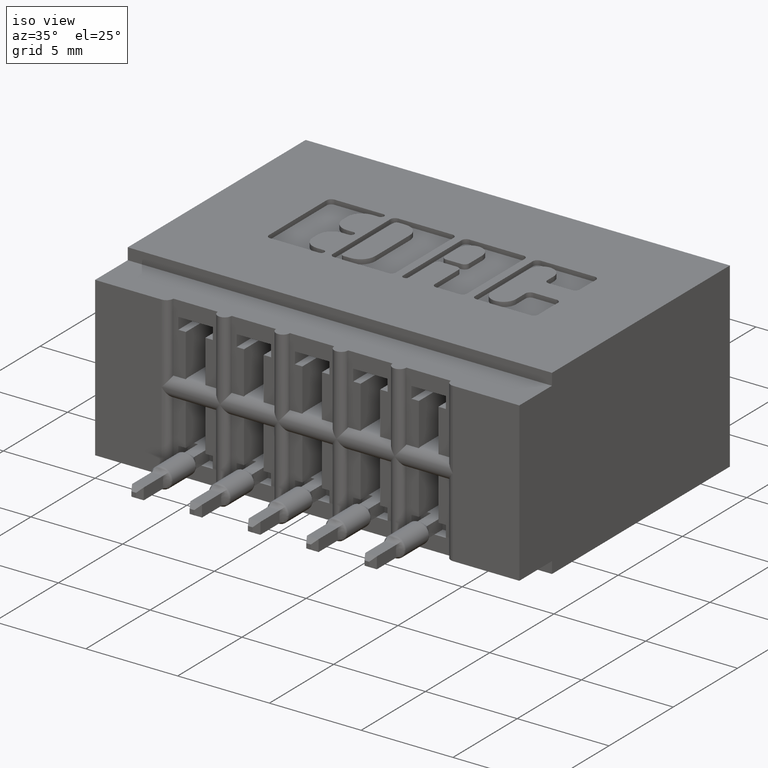
[diagram: clean part render]
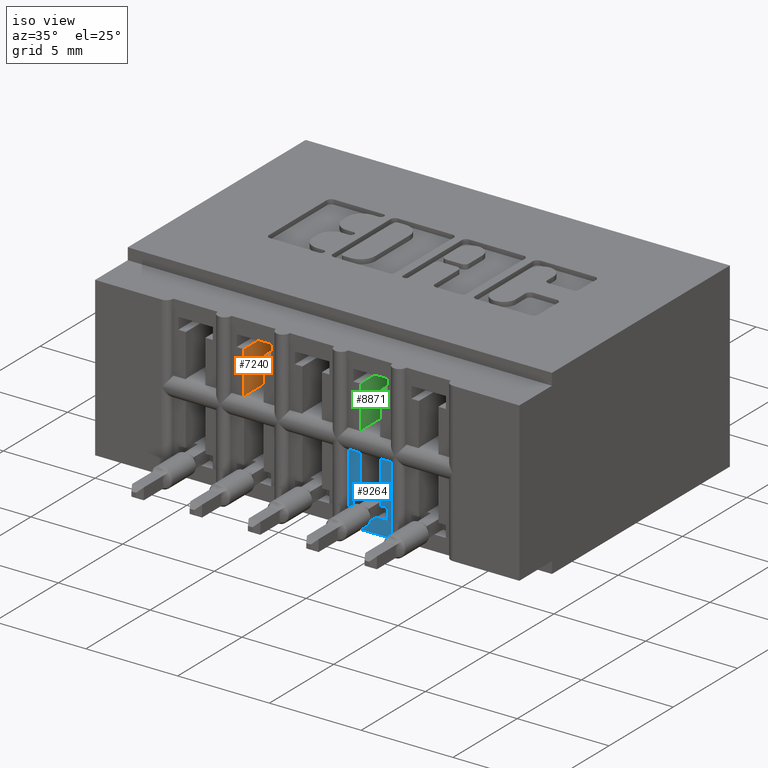
[diagram: same view with three faces highlighted in distinct colors, each labeled with its STEP entity id]
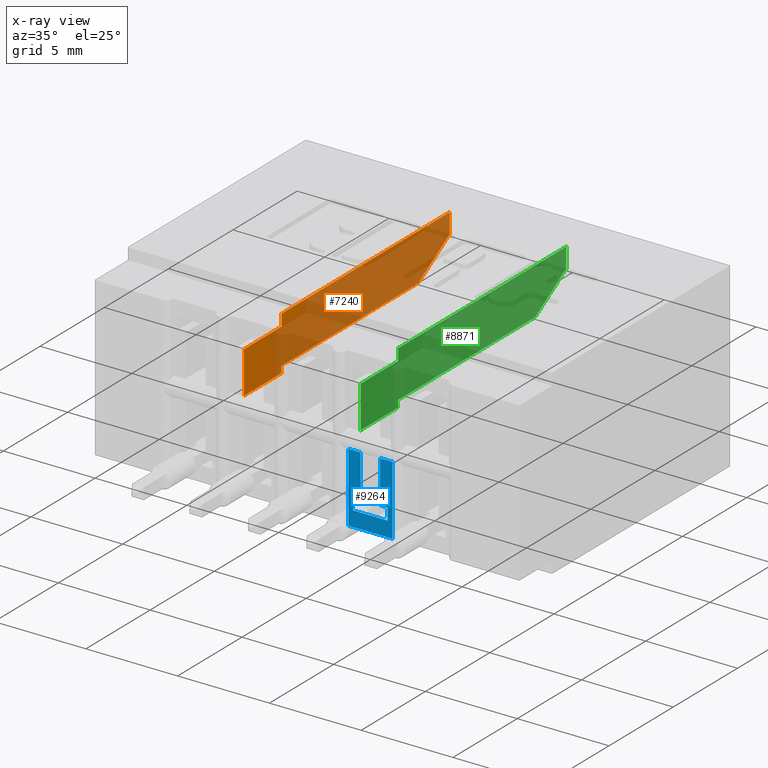
[diagram: x-ray of the same camera — body ghosted, the three highlighted faces saturated]
A machine part, iso view with three faces highlighted in distinct colors.
The next image is the same camera in x-ray (body ghosted, the three faces saturated) — at least one of them is partly hidden behind the body in this view.
Their STEP definitions:

[orange] entity #7240 — the highlighted planar face has unit normal (1, -0, -0).
#31 = DIRECTION ( 'NONE',  ( -1.238924702507071956E-16, -0.8545023705661021207, -0.5194474936862354397 ) ) ;
#371 = EDGE_CURVE ( 'NONE', #7023, #7970, #3991, .T. ) ;
#404 = DIRECTION ( 'NONE',  ( 2.385081683068867604E-16, 0.0000000000000000000, 1.000000000000000000 ) ) ;
#1069 = CIRCLE ( 'NONE', #6045, 0.02199999999999999872 ) ;
#1085 = VERTEX_POINT ( 'NONE', #6333 ) ;
#1188 = CARTESIAN_POINT ( 'NONE',  ( 0.3089999999995447499, 0.02199999999999999872, -0.1729999999999995708 ) ) ;
#1214 = ORIENTED_EDGE ( 'NONE', *, *, #9309, .T. ) ;
#1295 = EDGE_CURVE ( 'NONE', #8903, #5496, #9813, .T. ) ;
#1448 = DIRECTION ( 'NONE',  ( -1.000000000000000000, 4.930380657631322689E-32, 2.385081683068867604E-16 ) ) ;
#1555 = ORIENTED_EDGE ( 'NONE', *, *, #11791, .T. ) ;
#1592 = CARTESIAN_POINT ( 'NONE',  ( 0.3089999999999997748, 0.6449999999999999067, -0.1002500000000000474 ) ) ;
#1618 = LINE ( 'NONE', #4729, #12133 ) ;
#1659 = EDGE_CURVE ( 'NONE', #5177, #4200, #5537, .T. ) ;
#2165 = CARTESIAN_POINT ( 'NONE',  ( 0.3089999999999997193, 0.6449999999999999067, -4.404883600063556642E-17 ) ) ;
#2412 = ORIENTED_EDGE ( 'NONE', *, *, #8323, .T. ) ;
#2604 = EDGE_CURVE ( 'NONE', #5177, #10314, #1069, .T. ) ;
#2685 = VECTOR ( 'NONE', #2741, 39.37007874015748143 ) ;
#2741 = DIRECTION ( 'NONE',  ( 1.074795263139656238E-31, 1.000000000000000000, 2.439149994343092159E-16 ) ) ;
#2878 = CARTESIAN_POINT ( 'NONE',  ( 0.3089999999999996083, 0.1299999999999999212, -0.1580000000000000571 ) ) ;
#3237 = LINE ( 'NONE', #5957, #8097 ) ;
#3341 = VERTEX_POINT ( 'NONE', #10300 ) ;
#3420 = ORIENTED_EDGE ( 'NONE', *, *, #6397, .F. ) ;
#3559 = CARTESIAN_POINT ( 'NONE',  ( 0.3089999999999997193, 0.01499999999999997169, -0.08249999999999997613 ) ) ;
#3656 = CARTESIAN_POINT ( 'NONE',  ( 0.3089999999995447499, 0.02200000000000000566, -0.1949999999999995626 ) ) ;
#3725 = LINE ( 'NONE', #4762, #6428 ) ;
#3929 = CARTESIAN_POINT ( 'NONE',  ( 0.3089999999999997748, 0.6450000000000001288, -0.1002499999999999641 ) ) ;
#3978 = CARTESIAN_POINT ( 'NONE',  ( 0.3089999999999996083, 0.1299999999999999212, -0.1729999999999995708 ) ) ;
#3981 = DIRECTION ( 'NONE',  ( 2.385081683068867604E-16, 0.0000000000000000000, 1.000000000000000000 ) ) ;
#3991 = LINE ( 'NONE', #3929, #7658 ) ;
#4075 = CARTESIAN_POINT ( 'NONE',  ( 0.3089999999999997748, 0.5499999999999999334, -0.1580000000000000016 ) ) ;
#4200 = VERTEX_POINT ( 'NONE', #3559 ) ;
#4606 = ORIENTED_EDGE ( 'NONE', *, *, #371, .F. ) ;
#4691 = LINE ( 'NONE', #10588, #2685 ) ;
#4729 = CARTESIAN_POINT ( 'NONE',  ( 0.3089999999999996083, 0.1299999999999999212, -0.1580000000000000016 ) ) ;
#4741 = ORIENTED_EDGE ( 'NONE', *, *, #11388, .T. ) ;
#4762 = CARTESIAN_POINT ( 'NONE',  ( 0.3089999999995447499, 0.1299999999999999212, -0.1729999999999998483 ) ) ;
#5017 = DIRECTION ( 'NONE',  ( 2.385081683068867604E-16, 0.0000000000000000000, 1.000000000000000000 ) ) ;
#5177 = VERTEX_POINT ( 'NONE', #9844 ) ;
#5288 = PLANE ( 'NONE',  #8711 ) ;
#5496 = VERTEX_POINT ( 'NONE', #9454 ) ;
#5537 = LINE ( 'NONE', #9288, #10370 ) ;
#5765 = DIRECTION ( 'NONE',  ( 4.930380657631322689E-32, 1.000000000000000000, 0.0000000000000000000 ) ) ;
#5904 = ORIENTED_EDGE ( 'NONE', *, *, #1295, .T. ) ;
#5957 = CARTESIAN_POINT ( 'NONE',  ( 0.3089999999999996083, 0.1299999999999999489, -0.05749999999999997474 ) ) ;
#6045 = AXIS2_PLACEMENT_3D ( 'NONE', #3656, #1448, #6519 ) ;
#6333 = CARTESIAN_POINT ( 'NONE',  ( 0.3089999999999996083, 0.1299999999999999489, -0.05749999999999997474 ) ) ;
#6397 = EDGE_CURVE ( 'NONE', #1085, #3341, #4691, .T. ) ;
#6428 = VECTOR ( 'NONE', #11624, 39.37007874015748143 ) ;
#6519 = DIRECTION ( 'NONE',  ( 0.0000000000000000000, 3.492419310082155312E-15, -1.000000000000000000 ) ) ;
#6541 = CARTESIAN_POINT ( 'NONE',  ( 0.3089999999999996083, 0.1299999999999999489, -0.08249999999999999001 ) ) ;
#6602 = DIRECTION ( 'NONE',  ( 1.212154603119715305E-31, -1.000000000000000000, 2.626776916984869807E-16 ) ) ;
#6678 = EDGE_LOOP ( 'NONE', ( #10563, #5904, #1555, #4606, #4741, #3420, #1214, #2412, #12278, #7379 ) ) ;
#7023 = VERTEX_POINT ( 'NONE', #1592 ) ;
#7240 = ADVANCED_FACE ( 'NONE', ( #8331 ), #5288, .T. ) ;
#7266 = VECTOR ( 'NONE', #3981, 39.37007874015748143 ) ;
#7379 = ORIENTED_EDGE ( 'NONE', *, *, #2604, .T. ) ;
#7384 = VECTOR ( 'NONE', #5017, 39.37007874015748143 ) ;
#7658 = VECTOR ( 'NONE', #31, 39.37007874015748854 ) ;
#7707 = LINE ( 'NONE', #6541, #10557 ) ;
#7970 = VERTEX_POINT ( 'NONE', #4075 ) ;
#8080 = CARTESIAN_POINT ( 'NONE',  ( 0.3089999999999997193, -1.010728034814419673E-32, -4.404883600063556642E-17 ) ) ;
#8097 = VECTOR ( 'NONE', #10100, 39.37007874015748143 ) ;
#8323 = EDGE_CURVE ( 'NONE', #8827, #4200, #7707, .T. ) ;
#8331 = FACE_OUTER_BOUND ( 'NONE', #6678, .T. ) ;
#8711 = AXIS2_PLACEMENT_3D ( 'NONE', #8080, #12257, #9045 ) ;
#8760 = EDGE_CURVE ( 'NONE', #10314, #8903, #3725, .T. ) ;
#8827 = VERTEX_POINT ( 'NONE', #10001 ) ;
#8903 = VERTEX_POINT ( 'NONE', #3978 ) ;
#9045 = DIRECTION ( 'NONE',  ( -2.385081683068867604E-16, 0.0000000000000000000, -1.000000000000000000 ) ) ;
#9288 = CARTESIAN_POINT ( 'NONE',  ( 0.3089999999999997193, 0.01499999999999997169, -4.404883600063556642E-17 ) ) ;
#9309 = EDGE_CURVE ( 'NONE', #1085, #8827, #3237, .T. ) ;
#9454 = CARTESIAN_POINT ( 'NONE',  ( 0.3089999999999996083, 0.1299999999999999212, -0.1580000000000000016 ) ) ;
#9813 = LINE ( 'NONE', #2878, #7266 ) ;
#9844 = CARTESIAN_POINT ( 'NONE',  ( 0.3089999999995447499, 0.01499999999999997169, -0.1741433463853853669 ) ) ;
#10001 = CARTESIAN_POINT ( 'NONE',  ( 0.3089999999999996083, 0.1299999999999999489, -0.08249999999999999001 ) ) ;
#10100 = DIRECTION ( 'NONE',  ( 9.044631870915462890E-16, 0.0000000000000000000, -1.000000000000000000 ) ) ;
#10300 = CARTESIAN_POINT ( 'NONE',  ( 0.3089999999999997193, 0.6449999999999999067, -0.05750000000000000250 ) ) ;
#10314 = VERTEX_POINT ( 'NONE', #1188 ) ;
#10370 = VECTOR ( 'NONE', #404, 39.37007874015748143 ) ;
#10557 = VECTOR ( 'NONE', #6602, 39.37007874015748143 ) ;
#10563 = ORIENTED_EDGE ( 'NONE', *, *, #8760, .T. ) ;
#10588 = CARTESIAN_POINT ( 'NONE',  ( 0.3089999999999997193, 1.402511246747279532E-17, -0.05750000000000015515 ) ) ;
#11388 = EDGE_CURVE ( 'NONE', #7023, #3341, #11937, .T. ) ;
#11624 = DIRECTION ( 'NONE',  ( -5.539999536660085442E-31, 1.000000000000000000, -2.529488883022467915E-15 ) ) ;
#11791 = EDGE_CURVE ( 'NONE', #5496, #7970, #1618, .T. ) ;
#11937 = LINE ( 'NONE', #2165, #7384 ) ;
#12133 = VECTOR ( 'NONE', #5765, 39.37007874015748143 ) ;
#12257 = DIRECTION ( 'NONE',  ( 1.000000000000000000, -4.930380657631322689E-32, -2.385081683068867604E-16 ) ) ;
#12278 = ORIENTED_EDGE ( 'NONE', *, *, #1659, .F. ) ;

[blue] entity #9264 — the highlighted planar face has unit normal (0, 1, 0).
#76 = VECTOR ( 'NONE', #10231, 39.37007874015748143 ) ;
#104 = CARTESIAN_POINT ( 'NONE',  ( 0.5324999999999997513, 0.01499999999999997169, -0.3649999999999999911 ) ) ;
#196 = VECTOR ( 'NONE', #11174, 39.37007874015748143 ) ;
#229 = CARTESIAN_POINT ( 'NONE',  ( -19685.03937007874265, 0.01499999999999989536, -0.2158566536100716693 ) ) ;
#338 = CARTESIAN_POINT ( 'NONE',  ( 0.6009999999999996456, 0.01499999999999997169, -0.2158566536146137582 ) ) ;
#623 = VERTEX_POINT ( 'NONE', #4096 ) ;
#661 = CARTESIAN_POINT ( 'NONE',  ( 0.5429999999999998161, 0.01499999999999979475, -2.977017363770109629E-17 ) ) ;
#715 = CARTESIAN_POINT ( 'NONE',  ( 0.6169999999999995488, 0.01499999999999979475, -3.715354659355037839E-17 ) ) ;
#939 = DIRECTION ( 'NONE',  ( 1.000000000000000000, -0.0000000000000000000, -2.307304048702925122E-16 ) ) ;
#1068 = VERTEX_POINT ( 'NONE', #5167 ) ;
#1145 = CARTESIAN_POINT ( 'NONE',  ( 0.5324999999999997513, 0.01499999999999997169, -0.2158566536146137582 ) ) ;
#1348 = VECTOR ( 'NONE', #7959, 39.37007874015748143 ) ;
#1383 = CARTESIAN_POINT ( 'NONE',  ( 0.6274999999999996136, 0.01499999999999997169, -0.3900000000000000133 ) ) ;
#1754 = LINE ( 'NONE', #715, #11564 ) ;
#1773 = EDGE_CURVE ( 'NONE', #1068, #623, #8835, .T. ) ;
#1824 = CARTESIAN_POINT ( 'NONE',  ( 0.5324999999999997513, 0.01499999999999997169, -0.3900000000000000133 ) ) ;
#2175 = ORIENTED_EDGE ( 'NONE', *, *, #6313, .T. ) ;
#2197 = FACE_OUTER_BOUND ( 'NONE', #12473, .T. ) ;
#2230 = LINE ( 'NONE', #9287, #5929 ) ;
#2392 = CARTESIAN_POINT ( 'NONE',  ( 0.6009999999999996456, 0.01499999999999997169, -5.373951300518784932E-17 ) ) ;
#2579 = EDGE_CURVE ( 'NONE', #3798, #9777, #8266, .T. ) ;
#2910 = ORIENTED_EDGE ( 'NONE', *, *, #8388, .T. ) ;
#2929 = LINE ( 'NONE', #1824, #9644 ) ;
#3032 = VERTEX_POINT ( 'NONE', #8442 ) ;
#3171 = DIRECTION ( 'NONE',  ( -1.000000000000000000, -0.0000000000000000000, 2.307304048702924629E-16 ) ) ;
#3278 = LINE ( 'NONE', #229, #196 ) ;
#3460 = CARTESIAN_POINT ( 'NONE',  ( 0.6169999999999995488, 0.01499999999999994220, -0.3075000000000000511 ) ) ;
#3569 = VERTEX_POINT ( 'NONE', #1145 ) ;
#3798 = VERTEX_POINT ( 'NONE', #6533 ) ;
#4012 = LINE ( 'NONE', #4142, #9261 ) ;
#4096 = CARTESIAN_POINT ( 'NONE',  ( 0.5589999999994517133, 0.01499999999999997169, -0.2158566536146137582 ) ) ;
#4142 = CARTESIAN_POINT ( 'NONE',  ( 19685.03937007874265, 0.01499999999999989536, -0.2158566536191555418 ) ) ;
#4573 = EDGE_CURVE ( 'NONE', #1068, #11700, #10020, .T. ) ;
#4689 = CARTESIAN_POINT ( 'NONE',  ( 0.5429999999999997051, 0.01499999999999994220, -0.3075000000000000511 ) ) ;
#5099 = CARTESIAN_POINT ( 'NONE',  ( 0.5589999999999996083, 0.01499999999999993526, -0.3075000000000000511 ) ) ;
#5167 = CARTESIAN_POINT ( 'NONE',  ( 0.5589999999999997193, 0.01499999999999994220, -0.3075000000000000511 ) ) ;
#5378 = EDGE_CURVE ( 'NONE', #10303, #3032, #6283, .T. ) ;
#5401 = ORIENTED_EDGE ( 'NONE', *, *, #7891, .T. ) ;
#5658 = VERTEX_POINT ( 'NONE', #104 ) ;
#5929 = VECTOR ( 'NONE', #10265, 39.37007874015748143 ) ;
#5971 = DIRECTION ( 'NONE',  ( -0.0000000000000000000, -0.0000000000000000000, 1.000000000000000000 ) ) ;
#6024 = CARTESIAN_POINT ( 'NONE',  ( 0.5589999999999997193, 0.01499999999999979475, -3.715354659355037839E-17 ) ) ;
#6125 = DIRECTION ( 'NONE',  ( -0.0000000000000000000, -0.0000000000000000000, 1.000000000000000000 ) ) ;
#6283 = LINE ( 'NONE', #2392, #76 ) ;
#6313 = EDGE_CURVE ( 'NONE', #12167, #11700, #8394, .T. ) ;
#6533 = CARTESIAN_POINT ( 'NONE',  ( 0.6274999999999996136, 0.01499999999999997169, -0.3649999999999999911 ) ) ;
#6615 = ORIENTED_EDGE ( 'NONE', *, *, #10468, .F. ) ;
#6641 = DIRECTION ( 'NONE',  ( 2.385081683068867604E-16, 0.0000000000000000000, 1.000000000000000000 ) ) ;
#6934 = ORIENTED_EDGE ( 'NONE', *, *, #12513, .T. ) ;
#7237 = CARTESIAN_POINT ( 'NONE',  ( 0.6169999999999995488, 0.01499999999999994914, -0.3325000000000000178 ) ) ;
#7684 = AXIS2_PLACEMENT_3D ( 'NONE', #6024, #8038, #11131 ) ;
#7869 = CARTESIAN_POINT ( 'NONE',  ( 0.5589999999999997193, 0.01499999999999997169, -4.404883600063556642E-17 ) ) ;
#7891 = EDGE_CURVE ( 'NONE', #10195, #9885, #1754, .T. ) ;
#7959 = DIRECTION ( 'NONE',  ( 1.000000000000000000, -0.0000000000000000000, -2.307304048702925122E-16 ) ) ;
#7980 = VECTOR ( 'NONE', #9119, 39.37007874015748143 ) ;
#8038 = DIRECTION ( 'NONE',  ( 1.060635277729750645E-31, 1.000000000000000000, 4.596859604723521792E-16 ) ) ;
#8090 = LINE ( 'NONE', #8927, #1348 ) ;
#8266 = LINE ( 'NONE', #1383, #11772 ) ;
#8388 = EDGE_CURVE ( 'NONE', #5658, #3798, #11828, .T. ) ;
#8394 = LINE ( 'NONE', #661, #10744 ) ;
#8442 = CARTESIAN_POINT ( 'NONE',  ( 0.6009999999999995346, 0.01499999999999994220, -0.3075000000000000511 ) ) ;
#8570 = EDGE_CURVE ( 'NONE', #3569, #623, #3278, .T. ) ;
#8808 = ORIENTED_EDGE ( 'NONE', *, *, #4573, .F. ) ;
#8835 = LINE ( 'NONE', #7869, #11951 ) ;
#8927 = CARTESIAN_POINT ( 'NONE',  ( 0.5589999999999996083, 0.01499999999999994914, -0.3325000000000000178 ) ) ;
#9119 = DIRECTION ( 'NONE',  ( -1.000000000000000000, 6.287160262869394461E-33, 2.170533279014657500E-16 ) ) ;
#9160 = ORIENTED_EDGE ( 'NONE', *, *, #11511, .T. ) ;
#9253 = ORIENTED_EDGE ( 'NONE', *, *, #8570, .F. ) ;
#9261 = VECTOR ( 'NONE', #3171, 39.37007874015748143 ) ;
#9264 = ADVANCED_FACE ( 'NONE', ( #2197 ), #11068, .F. ) ;
#9287 = CARTESIAN_POINT ( 'NONE',  ( 0.5589999999999996083, 0.01499999999999993526, -0.3074999999999999956 ) ) ;
#9644 = VECTOR ( 'NONE', #5971, 39.37007874015748143 ) ;
#9684 = EDGE_CURVE ( 'NONE', #12167, #9885, #8090, .T. ) ;
#9777 = VERTEX_POINT ( 'NONE', #12331 ) ;
#9885 = VERTEX_POINT ( 'NONE', #7237 ) ;
#9969 = ORIENTED_EDGE ( 'NONE', *, *, #9684, .F. ) ;
#10020 = LINE ( 'NONE', #5099, #7980 ) ;
#10195 = VERTEX_POINT ( 'NONE', #3460 ) ;
#10231 = DIRECTION ( 'NONE',  ( -2.385081683068867604E-16, 0.0000000000000000000, -1.000000000000000000 ) ) ;
#10265 = DIRECTION ( 'NONE',  ( 1.000000000000000000, 6.287160262869416356E-33, -2.444074818391192251E-16 ) ) ;
#10303 = VERTEX_POINT ( 'NONE', #338 ) ;
#10468 = EDGE_CURVE ( 'NONE', #5658, #3569, #2929, .T. ) ;
#10744 = VECTOR ( 'NONE', #11551, 39.37007874015748143 ) ;
#10796 = CARTESIAN_POINT ( 'NONE',  ( 0.5589999999999996083, 0.01499999999999996302, -0.3649999999999999911 ) ) ;
#11068 = PLANE ( 'NONE',  #7684 ) ;
#11131 = DIRECTION ( 'NONE',  ( 0.0000000000000000000, -4.596859604723521792E-16, 1.000000000000000000 ) ) ;
#11174 = DIRECTION ( 'NONE',  ( 1.000000000000000000, 0.0000000000000000000, -2.307304048702924629E-16 ) ) ;
#11511 = EDGE_CURVE ( 'NONE', #3032, #10195, #2230, .T. ) ;
#11551 = DIRECTION ( 'NONE',  ( 4.614608097405849258E-16, -4.596859604723521792E-16, 1.000000000000000000 ) ) ;
#11564 = VECTOR ( 'NONE', #11606, 39.37007874015748143 ) ;
#11573 = VECTOR ( 'NONE', #939, 39.37007874015748143 ) ;
#11606 = DIRECTION ( 'NONE',  ( -0.0000000000000000000, 4.596859604723521792E-16, -1.000000000000000000 ) ) ;
#11639 = ORIENTED_EDGE ( 'NONE', *, *, #1773, .T. ) ;
#11700 = VERTEX_POINT ( 'NONE', #4689 ) ;
#11772 = VECTOR ( 'NONE', #6125, 39.37007874015748143 ) ;
#11778 = ORIENTED_EDGE ( 'NONE', *, *, #2579, .T. ) ;
#11828 = LINE ( 'NONE', #10796, #11573 ) ;
#11951 = VECTOR ( 'NONE', #6641, 39.37007874015748143 ) ;
#12167 = VERTEX_POINT ( 'NONE', #12169 ) ;
#12169 = CARTESIAN_POINT ( 'NONE',  ( 0.5429999999999997051, 0.01499999999999993873, -0.3324999999999999623 ) ) ;
#12331 = CARTESIAN_POINT ( 'NONE',  ( 0.6274999999999996136, 0.01499999999999997169, -0.2158566536146137582 ) ) ;
#12473 = EDGE_LOOP ( 'NONE', ( #11778, #6934, #12599, #9160, #5401, #9969, #2175, #8808, #11639, #9253, #6615, #2910 ) ) ;
#12513 = EDGE_CURVE ( 'NONE', #9777, #10303, #4012, .T. ) ;
#12599 = ORIENTED_EDGE ( 'NONE', *, *, #5378, .T. ) ;

[green] entity #8871 — the highlighted planar face has unit normal (1, -0, -0).
#126 = VERTEX_POINT ( 'NONE', #5370 ) ;
#131 = ORIENTED_EDGE ( 'NONE', *, *, #12658, .F. ) ;
#424 = LINE ( 'NONE', #3350, #3172 ) ;
#949 = VERTEX_POINT ( 'NONE', #3023 ) ;
#1095 = DIRECTION ( 'NONE',  ( 1.212154603119715305E-31, -1.000000000000000000, 2.626776916984869807E-16 ) ) ;
#1205 = DIRECTION ( 'NONE',  ( 2.385081683068867604E-16, 0.0000000000000000000, 1.000000000000000000 ) ) ;
#1463 = CARTESIAN_POINT ( 'NONE',  ( 0.5589999999999997193, 0.1299999999999999489, -0.08249999999999999001 ) ) ;
#1828 = EDGE_CURVE ( 'NONE', #6164, #3215, #2091, .T. ) ;
#1932 = ORIENTED_EDGE ( 'NONE', *, *, #11222, .T. ) ;
#2091 = LINE ( 'NONE', #4035, #9083 ) ;
#2167 = CARTESIAN_POINT ( 'NONE',  ( 0.5589999999999997193, 0.6449999999999999067, -0.05750000000000000250 ) ) ;
#2188 = EDGE_CURVE ( 'NONE', #5933, #2320, #9847, .T. ) ;
#2302 = CARTESIAN_POINT ( 'NONE',  ( 0.5589999999999996083, 0.1299999999999999212, -0.1729999999999995708 ) ) ;
#2320 = VERTEX_POINT ( 'NONE', #11395 ) ;
#2597 = LINE ( 'NONE', #6559, #7609 ) ;
#3012 = CIRCLE ( 'NONE', #11278, 0.02199999999999999872 ) ;
#3023 = CARTESIAN_POINT ( 'NONE',  ( 0.5589999999994517133, 0.02199999999999999872, -0.1729999999999995708 ) ) ;
#3121 = EDGE_CURVE ( 'NONE', #126, #6177, #12752, .T. ) ;
#3172 = VECTOR ( 'NONE', #1205, 39.37007874015748143 ) ;
#3215 = VERTEX_POINT ( 'NONE', #5122 ) ;
#3270 = CARTESIAN_POINT ( 'NONE',  ( 0.5589999999999997193, 0.1299999999999999212, -0.1580000000000000016 ) ) ;
#3350 = CARTESIAN_POINT ( 'NONE',  ( 0.5589999999999997193, 0.6449999999999999067, -4.404883600063556642E-17 ) ) ;
#3351 = DIRECTION ( 'NONE',  ( 9.044631870915462890E-16, 0.0000000000000000000, -1.000000000000000000 ) ) ;
#3557 = CARTESIAN_POINT ( 'NONE',  ( 0.5589999999999996083, 0.1299999999999999212, -0.1580000000000000848 ) ) ;
#3911 = DIRECTION ( 'NONE',  ( -1.000000000000000000, 4.930380657631322689E-32, 2.385081683068867604E-16 ) ) ;
#4019 = CARTESIAN_POINT ( 'NONE',  ( 0.5589999999999997193, 0.1299999999999999489, -0.08249999999999999001 ) ) ;
#4026 = VERTEX_POINT ( 'NONE', #4054 ) ;
#4035 = CARTESIAN_POINT ( 'NONE',  ( 0.5589999999999997193, 0.1299999999999999212, -0.1580000000000000016 ) ) ;
#4054 = CARTESIAN_POINT ( 'NONE',  ( 0.5589999999999997193, 0.6449999999999999067, -0.1002499999999999780 ) ) ;
#4197 = LINE ( 'NONE', #4259, #9317 ) ;
#4259 = CARTESIAN_POINT ( 'NONE',  ( 0.5589999999999997193, 0.1299999999999999489, -0.05749999999999997474 ) ) ;
#5122 = CARTESIAN_POINT ( 'NONE',  ( 0.5589999999999997193, 0.5499999999999999334, -0.1579999999999999183 ) ) ;
#5370 = CARTESIAN_POINT ( 'NONE',  ( 0.5589999999999997193, 0.1299999999999999489, -0.05749999999999997474 ) ) ;
#5501 = DIRECTION ( 'NONE',  ( 2.385081683068867604E-16, 0.0000000000000000000, 1.000000000000000000 ) ) ;
#5578 = VECTOR ( 'NONE', #1095, 39.37007874015748143 ) ;
#5642 = DIRECTION ( 'NONE',  ( 2.385081683068867604E-16, 0.0000000000000000000, 1.000000000000000000 ) ) ;
#5783 = EDGE_CURVE ( 'NONE', #4026, #6177, #424, .T. ) ;
#5801 = DIRECTION ( 'NONE',  ( -5.539999536660085442E-31, 1.000000000000000000, -2.529488883022467915E-15 ) ) ;
#5933 = VERTEX_POINT ( 'NONE', #1463 ) ;
#6016 = ORIENTED_EDGE ( 'NONE', *, *, #5783, .T. ) ;
#6054 = DIRECTION ( 'NONE',  ( 0.0000000000000000000, 3.492419310082155312E-15, -1.000000000000000000 ) ) ;
#6164 = VERTEX_POINT ( 'NONE', #3270 ) ;
#6177 = VERTEX_POINT ( 'NONE', #2167 ) ;
#6292 = ORIENTED_EDGE ( 'NONE', *, *, #10145, .T. ) ;
#6559 = CARTESIAN_POINT ( 'NONE',  ( 0.5589999999999997193, 0.01499999999999997169, -4.404883600063556642E-17 ) ) ;
#6715 = CARTESIAN_POINT ( 'NONE',  ( 0.5589999999994517133, 0.1299999999999999212, -0.1729999999999998483 ) ) ;
#6751 = CARTESIAN_POINT ( 'NONE',  ( 0.5589999999999997193, 1.402511246747279532E-17, -0.05750000000000015515 ) ) ;
#6771 = PLANE ( 'NONE',  #10149 ) ;
#6901 = EDGE_CURVE ( 'NONE', #126, #5933, #4197, .T. ) ;
#7128 = ORIENTED_EDGE ( 'NONE', *, *, #6901, .T. ) ;
#7255 = LINE ( 'NONE', #10359, #10089 ) ;
#7288 = VERTEX_POINT ( 'NONE', #2302 ) ;
#7609 = VECTOR ( 'NONE', #5642, 39.37007874015748143 ) ;
#7720 = ORIENTED_EDGE ( 'NONE', *, *, #11928, .F. ) ;
#7741 = CARTESIAN_POINT ( 'NONE',  ( 0.5589999999994517133, 0.01499999999999997169, -0.1741433463853853669 ) ) ;
#8009 = DIRECTION ( 'NONE',  ( 1.000000000000000000, -4.930380657631322689E-32, -2.385081683068867604E-16 ) ) ;
#8692 = DIRECTION ( 'NONE',  ( 1.074795263139656238E-31, 1.000000000000000000, 2.439149994343092159E-16 ) ) ;
#8780 = DIRECTION ( 'NONE',  ( -2.385081683068867604E-16, 0.0000000000000000000, -1.000000000000000000 ) ) ;
#8781 = CARTESIAN_POINT ( 'NONE',  ( 0.5589999999994517133, 0.02200000000000000566, -0.1949999999999995626 ) ) ;
#8871 = ADVANCED_FACE ( 'NONE', ( #11687 ), #6771, .T. ) ;
#8895 = DIRECTION ( 'NONE',  ( 4.930380657631322689E-32, 1.000000000000000000, 0.0000000000000000000 ) ) ;
#9019 = ORIENTED_EDGE ( 'NONE', *, *, #3121, .F. ) ;
#9076 = ORIENTED_EDGE ( 'NONE', *, *, #1828, .T. ) ;
#9083 = VECTOR ( 'NONE', #8895, 39.37007874015748143 ) ;
#9282 = ORIENTED_EDGE ( 'NONE', *, *, #2188, .T. ) ;
#9317 = VECTOR ( 'NONE', #3351, 39.37007874015748143 ) ;
#9565 = LINE ( 'NONE', #6715, #11098 ) ;
#9654 = ORIENTED_EDGE ( 'NONE', *, *, #12672, .T. ) ;
#9847 = LINE ( 'NONE', #4019, #5578 ) ;
#10089 = VECTOR ( 'NONE', #11389, 39.37007874015748854 ) ;
#10145 = EDGE_CURVE ( 'NONE', #11591, #949, #3012, .T. ) ;
#10149 = AXIS2_PLACEMENT_3D ( 'NONE', #11813, #8009, #8780 ) ;
#10359 = CARTESIAN_POINT ( 'NONE',  ( 0.5589999999999997193, 0.6449999999999999067, -0.1002499999999999780 ) ) ;
#11041 = VECTOR ( 'NONE', #8692, 39.37007874015748143 ) ;
#11098 = VECTOR ( 'NONE', #5801, 39.37007874015748143 ) ;
#11222 = EDGE_CURVE ( 'NONE', #949, #7288, #9565, .T. ) ;
#11278 = AXIS2_PLACEMENT_3D ( 'NONE', #8781, #3911, #6054 ) ;
#11319 = LINE ( 'NONE', #3557, #12355 ) ;
#11343 = EDGE_LOOP ( 'NONE', ( #1932, #9654, #9076, #131, #6016, #9019, #7128, #9282, #7720, #6292 ) ) ;
#11389 = DIRECTION ( 'NONE',  ( -1.238924702507071956E-16, -0.8545023705661021207, -0.5194474936862354397 ) ) ;
#11395 = CARTESIAN_POINT ( 'NONE',  ( 0.5589999999999997193, 0.01499999999999997169, -0.08249999999999997613 ) ) ;
#11591 = VERTEX_POINT ( 'NONE', #7741 ) ;
#11687 = FACE_OUTER_BOUND ( 'NONE', #11343, .T. ) ;
#11813 = CARTESIAN_POINT ( 'NONE',  ( 0.5589999999999997193, -1.010728034814419673E-32, -4.404883600063556642E-17 ) ) ;
#11928 = EDGE_CURVE ( 'NONE', #11591, #2320, #2597, .T. ) ;
#12355 = VECTOR ( 'NONE', #5501, 39.37007874015748143 ) ;
#12658 = EDGE_CURVE ( 'NONE', #4026, #3215, #7255, .T. ) ;
#12672 = EDGE_CURVE ( 'NONE', #7288, #6164, #11319, .T. ) ;
#12752 = LINE ( 'NONE', #6751, #11041 ) ;